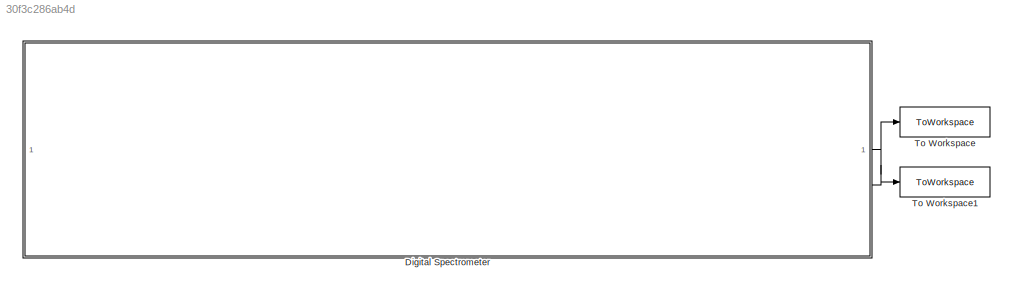
MODEL slx_30f3c286ab4d
KIND model
CONFIG AbsTol = auto
CONFIG EnableMultiTasking = off
CONFIG FixedStep = auto
CONFIG MaxStep = auto
CONFIG MinStep = auto
CONFIG RelTol = 1e-3
CONFIG SampleTimeConstraint = Unconstrained
CONFIG SolverName = FixedStepDiscrete
CONFIG StartTime = 0.0
CONFIG StopTime = inf
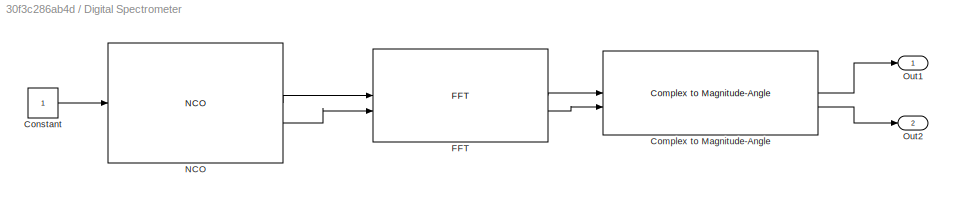
BLOCK [SubSystem] Digital Spectrometer
BLOCK [Reference] Digital Spectrometer/Complex to Magnitude-Angle  REF=dsphdlmathfun2/Complex to Magnitude-Angle
  SourceBlock = dsphdlmathfun2/Complex to Magnitude-Angle
  SourceType = Complex to Magnitude-Angle
BLOCK [Constant] Digital Spectrometer/Constant
  OutDataTypeStr = boolean
  SampleTime = 1
BLOCK [Reference] Digital Spectrometer/FFT  REF=dsphdlxfrm2/FFT
  SourceBlock = dsphdlxfrm2/FFT
  SourceType = FFT
BLOCK [Reference] Digital Spectrometer/NCO  REF=dsphdlsigops2/NCO
  LibrarySourceBlock = dsphdlsrcs2/NCO
  SourceBlock = dsphdlsigops2/NCO
  SourceType = NCO
BLOCK [Outport] Digital Spectrometer/Out1
BLOCK [Outport] Digital Spectrometer/Out2
  Port = 2
BLOCK [ToWorkspace] To Workspace
  FixptAsFi = on
  MaxDataPoints = inf
  SampleTime = -1
  Save2DSignal = 2-D array (concatenate along first dimension)
  VariableName = SciInfo
BLOCK [ToWorkspace] To Workspace1
  FixptAsFi = on
  MaxDataPoints = inf
  SampleTime = -1
  Save2DSignal = 2-D array (concatenate along first dimension)
  VariableName = SciInfo_Valid
LINE Digital Spectrometer/Complex to Magnitude-Angle:1 -> Digital Spectrometer/Out1:1
LINE Digital Spectrometer/Complex to Magnitude-Angle:2 -> Digital Spectrometer/Out2:1
LINE Digital Spectrometer/Constant:1 -> Digital Spectrometer/NCO:1
LINE Digital Spectrometer/FFT:1 -> Digital Spectrometer/Complex to Magnitude-Angle:1
LINE Digital Spectrometer/FFT:2 -> Digital Spectrometer/Complex to Magnitude-Angle:2
LINE Digital Spectrometer/NCO:1 -> Digital Spectrometer/FFT:1
LINE Digital Spectrometer/NCO:2 -> Digital Spectrometer/FFT:2
LINE Digital Spectrometer:1 -> To Workspace:1
LINE Digital Spectrometer:2 -> To Workspace1:1
